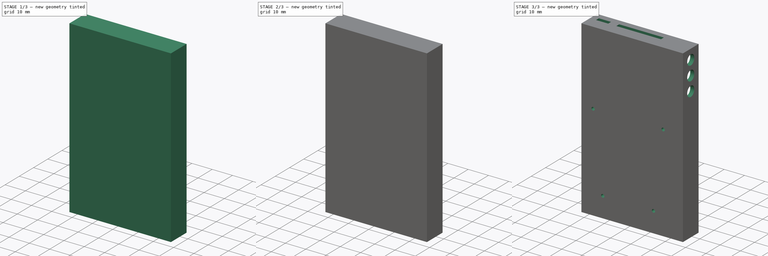
[diagram: build sequence overview — one tinted view per stage of 3, left to right]
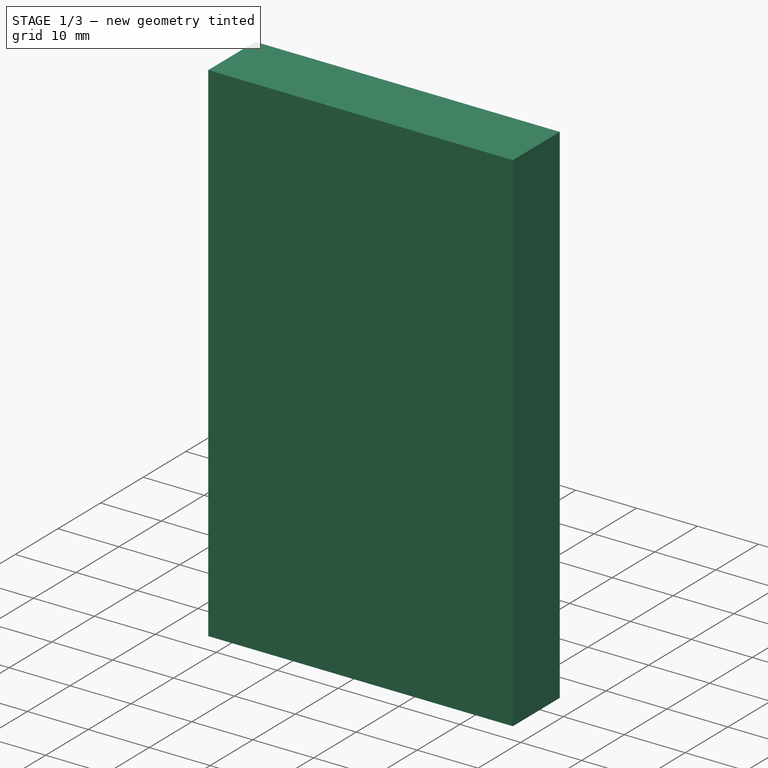
[diagram: stage 1 of 3 — iso view after this stage's code; geometry added in this stage tinted green]
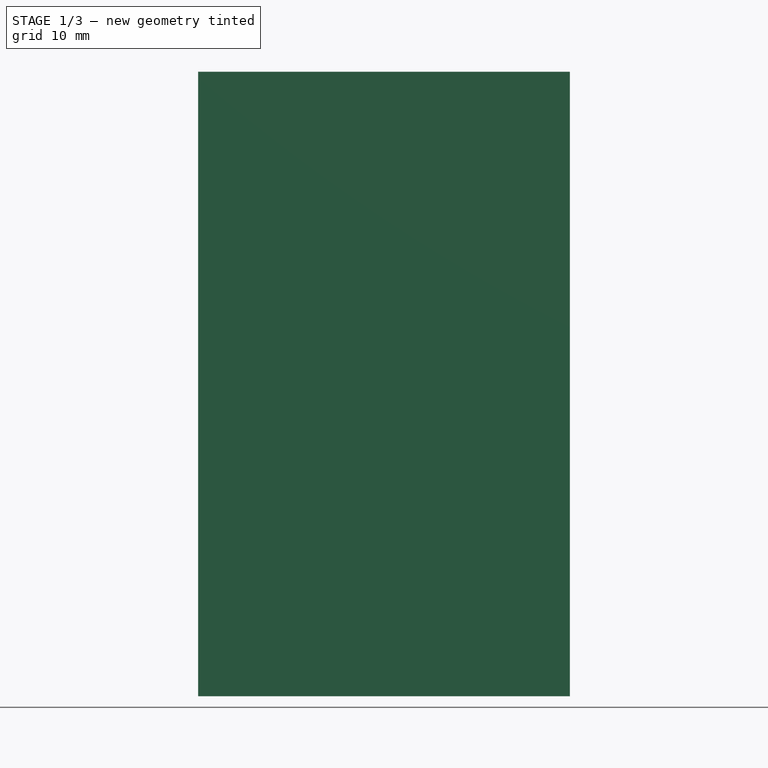
[diagram: stage 1 of 3 — front view after this stage's code; geometry added in this stage tinted green]
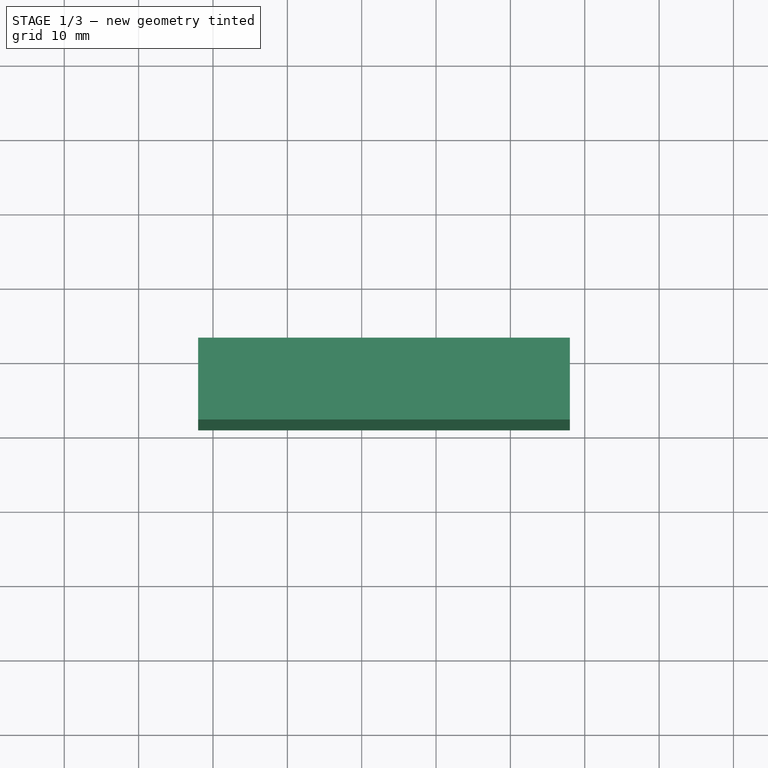
[diagram: stage 1 of 3 — top view after this stage's code; geometry added in this stage tinted green]
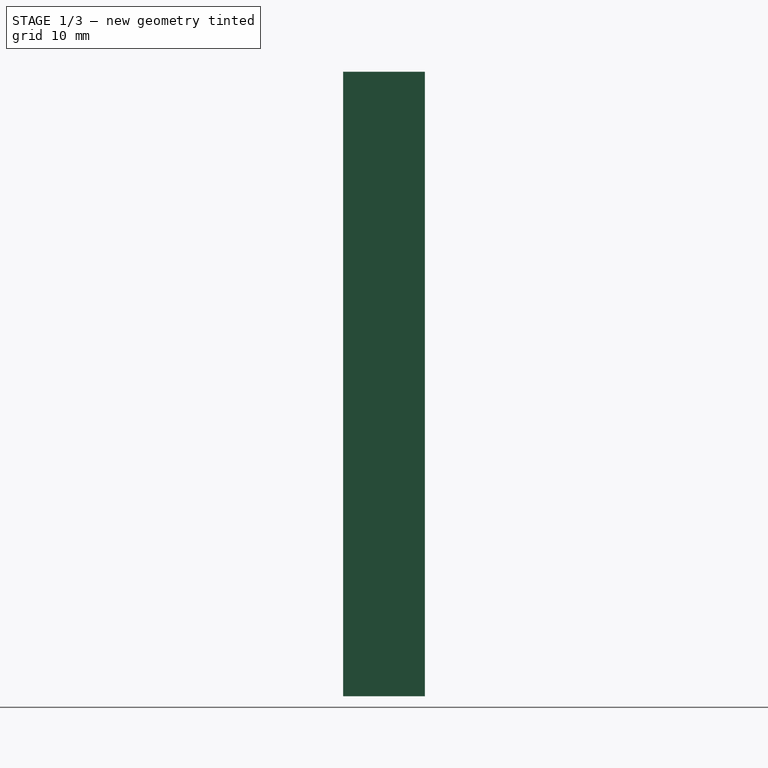
[diagram: stage 1 of 3 — right view after this stage's code; geometry added in this stage tinted green]
FCSTD DOCUMENT  (FreeCAD 1.0R39319 (Git))
Label: back-01
License: All rights reserved
LicenseURL: http://en.wikipedia.org/wiki/All_rights_reserved
objects: Sketcher::SketchObject×10, PartDesign::Pad×5, Measure::MeasureDistance×3, PartDesign::Pocket×2, App::Part×1, PartDesign::Hole×1, PartDesign::Body×1, App::DocumentObjectGroup×1
note: 45 computed .brp shape members not serialized (recipe doc carries the construction recipe); baked Part::Feature solids carry a one-line shape summary decoded from their .brp

FEATURE [Sketcher::SketchObject] Sketch
  ArcFitTolerance = 1e-06
  FullyConstrained = true
  MakeInternals = false
  MapMode = 5
  Placement = pos=(0,1,0) rot=(0,0.707107,0.707107;3.14159rad)
  sketch-geometry (4):
    g0: Circle CenterX=-38.25 CenterY=-16.5 CenterZ=0 NormalX=0 NormalY=0 NormalZ=1 AngleXU=0 Radius=2.5
    g1: Circle CenterX=-3.75 CenterY=-16.5 CenterZ=0 NormalX=0 NormalY=0 NormalZ=1 AngleXU=0 Radius=2.5
    g2: Circle CenterX=-33.5 CenterY=-54 CenterZ=0 NormalX=0 NormalY=0 NormalZ=1 AngleXU=0 Radius=2.5
    g3: Circle CenterX=-8.5 CenterY=-54 CenterZ=0 NormalX=0 NormalY=0 NormalZ=1 AngleXU=0 Radius=2.5
  constraints (12):
    c: PointOnObject(g-6,g0)
    c: PointOnObject(g-5,g0)
    c: PointOnObject(g-7,g0)
    c: PointOnObject(g-9,g1)
    c: PointOnObject(g-10,g1)
    c: PointOnObject(g-11,g1)
    c: PointOnObject(g-13,g2)
    c: PointOnObject(g-14,g2)
    c: PointOnObject(g-15,g2)
    c: PointOnObject(g-16,g3)
    c: PointOnObject(g-17,g3)
    c: PointOnObject(g-18,g3)
FEATURE [Sketcher::SketchObject] Sketch001
  ArcFitTolerance = 1e-06
  FullyConstrained = true
  MakeInternals = false
  MapMode = 5
  Placement = pos=(0,1,0) rot=(0,0.707107,0.707107;3.14159rad)
  sketch-geometry (4):
    g0: Circle [constr] CenterX=-38.25 CenterY=-16.5 CenterZ=0 NormalX=0 NormalY=0 NormalZ=1 AngleXU=0 Radius=2.5
    g1: Circle [constr] CenterX=-3.75 CenterY=-16.5 CenterZ=0 NormalX=0 NormalY=0 NormalZ=1 AngleXU=0 Radius=2.5
    g2: Circle [constr] CenterX=-33.5 CenterY=-54 CenterZ=0 NormalX=0 NormalY=0 NormalZ=1 AngleXU=0 Radius=2.5
    g3: Circle [constr] CenterX=-8.5 CenterY=-54 CenterZ=0 NormalX=0 NormalY=0 NormalZ=1 AngleXU=0 Radius=2.5
  constraints (12):
    c: PointOnObject(g-6,g0)
    c: PointOnObject(g-5,g0)
    c: PointOnObject(g-7,g0)
    c: PointOnObject(g-9,g1)
    c: PointOnObject(g-10,g1)
    c: PointOnObject(g-11,g1)
    c: PointOnObject(g-13,g2)
    c: PointOnObject(g-14,g2)
    c: PointOnObject(g-15,g2)
    c: PointOnObject(g-16,g3)
    c: PointOnObject(g-17,g3)
    c: PointOnObject(g-18,g3)
FEATURE [Sketcher::SketchObject] Sketch002
  ArcFitTolerance = 1e-06
  FullyConstrained = false
  MakeInternals = false
  MapMode = 5
  Placement = pos=(0,1,0) rot=(0,0.707107,0.707107;3.14159rad)
  sketch-geometry (10):
    g0: Circle [constr] CenterX=-38.25 CenterY=-16.5 CenterZ=0 NormalX=0 NormalY=0 NormalZ=1 AngleXU=0 Radius=2.5
    g1: Circle [constr] CenterX=-3.75 CenterY=-16.5 CenterZ=0 NormalX=0 NormalY=0 NormalZ=1 AngleXU=0 Radius=2.5
    g2: Circle [constr] CenterX=-33.5 CenterY=-54 CenterZ=0 NormalX=0 NormalY=0 NormalZ=1 AngleXU=0 Radius=2.5
    g3: Circle [constr] CenterX=-8.5 CenterY=-54 CenterZ=0 NormalX=0 NormalY=0 NormalZ=1 AngleXU=0 Radius=2.5
    g4: LineSegment StartX=-44 StartY=-64 StartZ=0 EndX=2 EndY=-64 EndZ=0
    g5: LineSegment StartX=2 StartY=-64 StartZ=0 EndX=2 EndY=20 EndZ=0
    g6: LineSegment StartX=2 StartY=20 StartZ=0 EndX=-44 EndY=20 EndZ=0
    g7: LineSegment StartX=-44 StartY=20 StartZ=0 EndX=-48 EndY=20 EndZ=0
    g8: LineSegment StartX=-48 StartY=20 StartZ=0 EndX=-48 EndY=-64 EndZ=0
    g9: LineSegment StartX=-48 StartY=-64 StartZ=0 EndX=-44 EndY=-64 EndZ=0
  constraints (29):
    c: PointOnObject(g-6,g0)
    c: PointOnObject(g-5,g0)
    c: PointOnObject(g-7,g0)
    c: PointOnObject(g-9,g1)
    c: PointOnObject(g-10,g1)
    c: PointOnObject(g-11,g1)
    c: PointOnObject(g-13,g2)
    c: PointOnObject(g-14,g2)
    c: PointOnObject(g-15,g2)
    c: PointOnObject(g-16,g3)
    c: PointOnObject(g-17,g3)
    c: PointOnObject(g-18,g3)
    c: Coincident(g4,g5)
    c: Coincident(g5,g6)
    c: Vertical(g5)
    c: Horizontal(g4)
    c: Horizontal(g6)
    c: PointOnObject(g6,g-23)
    c: PointOnObject(g-24,g5)
    c: PointOnObject(g-26,g6)
    c: PointOnObject(g-25,g4)
    c: Coincident(g6,g7)
    c: Horizontal(g7)
    c: Coincident(g7,g8)
    c: Vertical(g8)
    c: Coincident(g8,g9)
    c: Coincident(g9,g4)
    c: Horizontal(g9)
    c: DistanceX(g7,g6) = 4
FEATURE [App::Part] Part
  Origin = -> Origin
FEATURE [PartDesign::Pad] Pad  label="bottom-box"
  Direction = (0,1,-2e-16)
  Length = 2
  Length2 = 10
  Placement = pos=(0,1,0) rot=(0,0.707107,0.707107;3.14159rad)
  Profile = -> Sketch002
  ReferenceAxis = -> Sketch002 [N_Axis]
  Suppressed = false
  Type = 0
FEATURE [Sketcher::SketchObject] Sketch003
  ArcFitTolerance = 1e-06
  FullyConstrained = false
  MakeInternals = false
  MapMode = 5
  Placement = pos=(0,1,0) rot=(0,0.707107,0.707107;3.14159rad)
  sketch-geometry (16):
    g0: Circle [constr] CenterX=-38.25 CenterY=-16.5 CenterZ=0 NormalX=0 NormalY=0 NormalZ=1 AngleXU=0 Radius=2.5
    g1: Circle [constr] CenterX=-3.75 CenterY=-16.5 CenterZ=0 NormalX=0 NormalY=0 NormalZ=1 AngleXU=0 Radius=2.5
    g2: Circle [constr] CenterX=-33.5 CenterY=-54 CenterZ=0 NormalX=0 NormalY=0 NormalZ=1 AngleXU=0 Radius=2.5
    g3: Circle [constr] CenterX=-8.5 CenterY=-54 CenterZ=0 NormalX=0 NormalY=0 NormalZ=1 AngleXU=0 Radius=2.5
    g4: LineSegment StartX=-44 StartY=-64 StartZ=0 EndX=2 EndY=-64 EndZ=0
    g5: LineSegment StartX=2 StartY=-64 StartZ=0 EndX=2 EndY=20 EndZ=0
    g6: LineSegment StartX=2 StartY=20 StartZ=0 EndX=-44 EndY=20 EndZ=0
    g7: LineSegment StartX=-42 StartY=-62 StartZ=0 EndX=0 EndY=-62 EndZ=0
    g8: LineSegment StartX=0 StartY=-62 StartZ=0 EndX=0 EndY=18 EndZ=0
    g9: LineSegment StartX=0 StartY=18 StartZ=0 EndX=-42 EndY=18 EndZ=0
    g10: LineSegment StartX=-44 StartY=20 StartZ=0 EndX=-48 EndY=20 EndZ=0
    g11: LineSegment StartX=-48 StartY=20 StartZ=0 EndX=-48 EndY=-64 EndZ=0
    g12: LineSegment StartX=-48 StartY=-64 StartZ=0 EndX=-44 EndY=-64 EndZ=0
    g13: LineSegment StartX=-42 StartY=-62 StartZ=0 EndX=-46 EndY=-62 EndZ=0
    g14: LineSegment StartX=-46 StartY=-62 StartZ=0 EndX=-46 EndY=18 EndZ=0
    g15: LineSegment StartX=-46 StartY=18 StartZ=0 EndX=-42 EndY=18 EndZ=0
  constraints (44):
    c: PointOnObject(g-6,g0)
    c: PointOnObject(g-5,g0)
    c: PointOnObject(g-7,g0)
    c: PointOnObject(g-9,g1)
    c: PointOnObject(g-10,g1)
    c: PointOnObject(g-11,g1)
    c: PointOnObject(g-13,g2)
    c: PointOnObject(g-14,g2)
    c: PointOnObject(g-15,g2)
    c: PointOnObject(g-16,g3)
    c: PointOnObject(g-17,g3)
    c: PointOnObject(g-18,g3)
    c: Coincident(g4,g5)
    c: Coincident(g5,g6)
    c: Vertical(g5)
    c: Horizontal(g4)
    c: Horizontal(g6)
    c: PointOnObject(g6,g-23)
    c: PointOnObject(g-24,g5)
    c: PointOnObject(g-26,g6)
    c: PointOnObject(g-25,g4)
    c: Coincident(g7,g8)
    c: Coincident(g8,g9)
    c: Vertical(g8)
    c: Horizontal(g7)
    c: Horizontal(g9)
    c: Coincident(g7,g-4)
    c: Coincident(g6,g10)
    c: Horizontal(g10)
    c: Coincident(g10,g11)
    c: Vertical(g11)
    c: Coincident(g11,g12)
    c: Coincident(g12,g4)
    c: Horizontal(g12)
    c: Coincident(g7,g13)
    c: Horizontal(g13)
    c: Coincident(g13,g14)
    c: Vertical(g14)
    c: Coincident(g14,g15)
    c: Coincident(g15,g9)
    c: Coincident(g9,g-19)
    c: Horizontal(g15)
    c: DistanceX(g14,g9) = 4
    c: DistanceX(g10,g6) = 4
FEATURE [PartDesign::Pad] Pad001  label="inside-box"
  BaseFeature = -> Pad
  Direction = (1e-16,1,-2e-16)
  Length = 9
  Length2 = 10
  Placement = pos=(0,1,0) rot=(0,0.707107,0.707107;3.14159rad)
  Profile = -> Sketch003
  ReferenceAxis = -> Sketch003 [N_Axis]
  Suppressed = false
  Type = 0
FEATURE [Sketcher::SketchObject] Sketch004
  ArcFitTolerance = 1e-06
  FullyConstrained = false
  MakeInternals = false
  MapMode = 5
  Placement = pos=(0,1,0) rot=(0,0.707107,0.707107;3.14159rad)
  sketch-geometry (20):
    g0: Circle [constr] CenterX=-38.25 CenterY=-16.5 CenterZ=0 NormalX=0 NormalY=0 NormalZ=1 AngleXU=0 Radius=2.5
    g1: Circle [constr] CenterX=-3.75 CenterY=-16.5 CenterZ=0 NormalX=0 NormalY=0 NormalZ=1 AngleXU=0 Radius=2.5
    g2: Circle [constr] CenterX=-33.5 CenterY=-54 CenterZ=0 NormalX=0 NormalY=0 NormalZ=1 AngleXU=0 Radius=2.5
    g3: Circle [constr] CenterX=-8.5 CenterY=-54 CenterZ=0 NormalX=0 NormalY=0 NormalZ=1 AngleXU=0 Radius=2.5
    g4: LineSegment StartX=-44 StartY=-64 StartZ=0 EndX=2 EndY=-64 EndZ=0
    g5: LineSegment StartX=2 StartY=-64 StartZ=0 EndX=2 EndY=20 EndZ=0
    g6: LineSegment StartX=2 StartY=20 StartZ=0 EndX=-44 EndY=20 EndZ=0
    g7: LineSegment [constr] StartX=-42 StartY=18 StartZ=0 EndX=-42 EndY=-62 EndZ=0
    g8: LineSegment [constr] StartX=-42 StartY=-62 StartZ=0 EndX=0 EndY=-62 EndZ=0
    g9: LineSegment [constr] StartX=0 StartY=-62 StartZ=0 EndX=0 EndY=18 EndZ=0
    g10: LineSegment [constr] StartX=0 StartY=18 StartZ=0 EndX=-42 EndY=18 EndZ=0
    g11: LineSegment StartX=-43 StartY=-63 StartZ=0 EndX=1 EndY=-63 EndZ=0
    g12: LineSegment StartX=1 StartY=-63 StartZ=0 EndX=1 EndY=19 EndZ=0
    g13: LineSegment StartX=1 StartY=19 StartZ=0 EndX=-43 EndY=19 EndZ=0
    g14: LineSegment StartX=-44 StartY=20 StartZ=0 EndX=-48 EndY=20 EndZ=0
    g15: LineSegment StartX=-48 StartY=20 StartZ=0 EndX=-48 EndY=-64 EndZ=0
    g16: LineSegment StartX=-48 StartY=-64 StartZ=0 EndX=-44 EndY=-64 EndZ=0
    g17: LineSegment StartX=-43 StartY=19 StartZ=0 EndX=-47 EndY=19 EndZ=0
    g18: LineSegment StartX=-47 StartY=19 StartZ=0 EndX=-47 EndY=-63 EndZ=0
    g19: LineSegment StartX=-47 StartY=-63 StartZ=0 EndX=-43 EndY=-63 EndZ=0
  constraints (54):
    c: PointOnObject(g-6,g0)
    c: PointOnObject(g-5,g0)
    c: PointOnObject(g-7,g0)
    c: PointOnObject(g-9,g1)
    c: PointOnObject(g-10,g1)
    c: PointOnObject(g-11,g1)
    c: PointOnObject(g-13,g2)
    c: PointOnObject(g-14,g2)
    c: PointOnObject(g-15,g2)
    c: PointOnObject(g-16,g3)
    c: PointOnObject(g-17,g3)
    c: PointOnObject(g-18,g3)
    c: Coincident(g4,g5)
    c: Coincident(g5,g6)
    c: Vertical(g5)
    c: Horizontal(g4)
    c: Horizontal(g6)
    c: PointOnObject(g6,g-23)
    c: PointOnObject(g-24,g5)
    c: PointOnObject(g-26,g6)
    c: PointOnObject(g-25,g4)
    c: Coincident(g7,g8)
    c: Coincident(g8,g9)
    c: Coincident(g9,g10)
    c: Coincident(g10,g7)
    c: Vertical(g7)
    c: Vertical(g9)
    c: Horizontal(g8)
    c: Horizontal(g10)
    c: Coincident(g7,g-19)
    c: Coincident(g8,g-4)
    c: Coincident(g11,g12)
    c: Coincident(g12,g13)
    c: Vertical(g12)
    c: Horizontal(g11)
    c: Horizontal(g13)
    c: Coincident(g11,g-22)
    c: Coincident(g6,g14)
    c: Horizontal(g14)
    c: Coincident(g14,g15)
    c: Vertical(g15)
    c: Coincident(g15,g16)
    c: Coincident(g16,g4)
    c: Horizontal(g16)
    c: Coincident(g13,g17)
    c: Horizontal(g17)
    c: Coincident(g17,g18)
    c: Vertical(g18)
    c: Coincident(g18,g19)
    c: Coincident(g19,g11)
    c: Horizontal(g19)
    c: DistanceX(g14,g6) = 4
    c: DistanceX(g17,g13) = 4
    c: Coincident(g13,g-21)
FEATURE [PartDesign::Pad] Pad002  label="outside-box"
  BaseFeature = -> Pad001
  Direction = (1e-16,1,-2e-16)
  Length = 11
  Length2 = 10
  Placement = pos=(0,1,0) rot=(0,0.707107,0.707107;3.14159rad)
  Profile = -> Sketch004
  ReferenceAxis = -> Sketch004 [N_Axis]
  Suppressed = false
  Type = 0
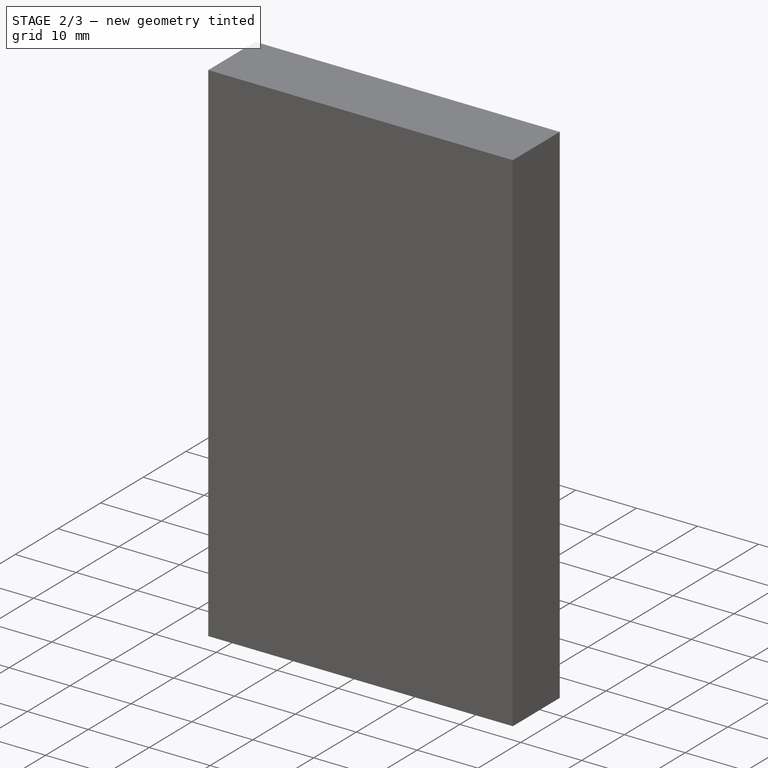
[diagram: stage 2 of 3 — iso view after this stage's code; geometry added in this stage tinted green]
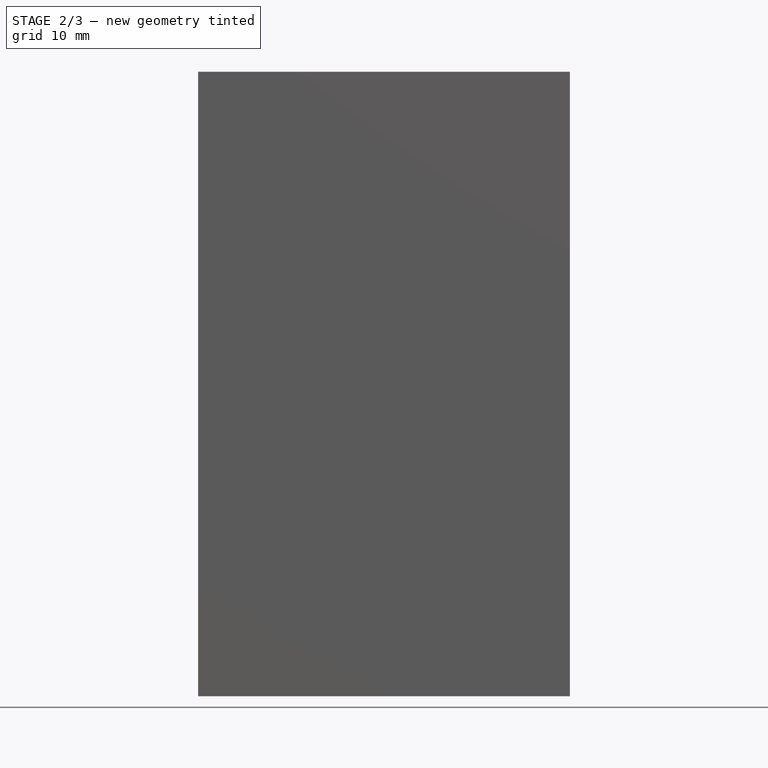
[diagram: stage 2 of 3 — front view after this stage's code; geometry added in this stage tinted green]
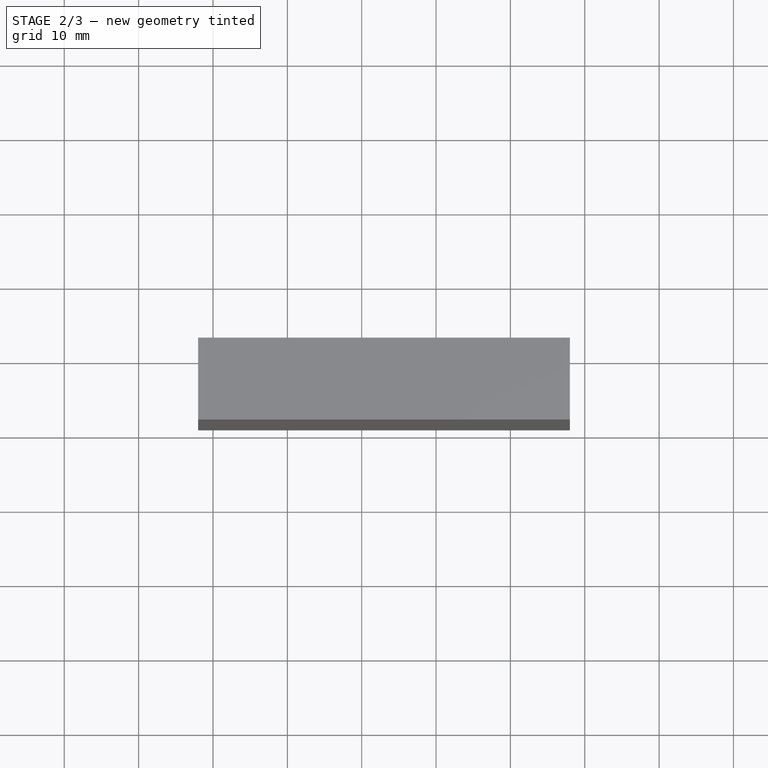
[diagram: stage 2 of 3 — top view after this stage's code; geometry added in this stage tinted green]
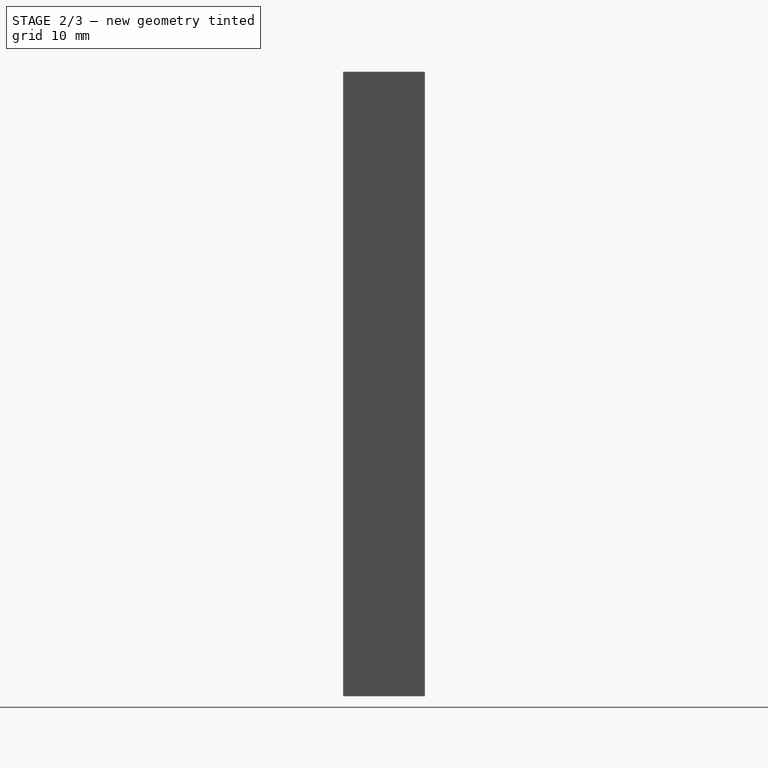
[diagram: stage 2 of 3 — right view after this stage's code; geometry added in this stage tinted green]
FEATURE [Sketcher::SketchObject] Sketch005  label="fat-peg001"
  ArcFitTolerance = 1e-06
  FullyConstrained = true
  MakeInternals = false
  MapMode = 5
  Placement = pos=(0,1,0) rot=(0,0.707107,0.707107;3.14159rad)
  sketch-geometry (4):
    g0: Circle CenterX=-38.25 CenterY=-16.5 CenterZ=0 NormalX=0 NormalY=0 NormalZ=1 AngleXU=0 Radius=2.5
    g1: Circle CenterX=-3.75 CenterY=-16.5 CenterZ=0 NormalX=0 NormalY=0 NormalZ=1 AngleXU=0 Radius=2.5
    g2: Circle CenterX=-33.5 CenterY=-54 CenterZ=0 NormalX=0 NormalY=0 NormalZ=1 AngleXU=0 Radius=2.5
    g3: Circle CenterX=-8.5 CenterY=-54 CenterZ=0 NormalX=0 NormalY=0 NormalZ=1 AngleXU=0 Radius=2.5
  constraints (12):
    c: PointOnObject(g-6,g0)
    c: PointOnObject(g-5,g0)
    c: PointOnObject(g-7,g0)
    c: PointOnObject(g-9,g1)
    c: PointOnObject(g-10,g1)
    c: PointOnObject(g-11,g1)
    c: PointOnObject(g-13,g2)
    c: PointOnObject(g-14,g2)
    c: PointOnObject(g-15,g2)
    c: PointOnObject(g-16,g3)
    c: PointOnObject(g-17,g3)
    c: PointOnObject(g-18,g3)
FEATURE [PartDesign::Pad] Pad003  label="fat-peg"
  BaseFeature = -> Pad002
  Direction = (1e-16,1,-2e-16)
  Length = 4.5
  Length2 = 10
  Placement = pos=(0,1,0) rot=(0,0.707107,0.707107;3.14159rad)
  Profile = -> Sketch005
  ReferenceAxis = -> Sketch005 [N_Axis]
  Suppressed = false
  Type = 0
FEATURE [Sketcher::SketchObject] Sketch006  label="narrow-peg001"
  ArcFitTolerance = 1e-06
  FullyConstrained = true
  MakeInternals = false
  MapMode = 5
  Placement = pos=(0,1,0) rot=(0,0.707107,0.707107;3.14159rad)
  sketch-geometry (8):
    g0: Circle [constr] CenterX=-38.25 CenterY=-16.5 CenterZ=0 NormalX=0 NormalY=0 NormalZ=1 AngleXU=0 Radius=2.5
    g1: Circle [constr] CenterX=-3.75 CenterY=-16.5 CenterZ=0 NormalX=0 NormalY=0 NormalZ=1 AngleXU=0 Radius=2.5
    g2: Circle [constr] CenterX=-33.5 CenterY=-54 CenterZ=0 NormalX=0 NormalY=0 NormalZ=1 AngleXU=0 Radius=2.5
    g3: Circle [constr] CenterX=-8.5 CenterY=-54 CenterZ=0 NormalX=0 NormalY=0 NormalZ=1 AngleXU=0 Radius=2.5
    g4: Circle CenterX=-3.75 CenterY=-16.5 CenterZ=0 NormalX=0 NormalY=0 NormalZ=1 AngleXU=0 Radius=1.5
    g5: Circle CenterX=-38.25 CenterY=-16.5 CenterZ=0 NormalX=0 NormalY=0 NormalZ=1 AngleXU=0 Radius=1.5
    g6: Circle CenterX=-8.5 CenterY=-54 CenterZ=0 NormalX=0 NormalY=0 NormalZ=1 AngleXU=0 Radius=1.5
    g7: Circle CenterX=-33.5 CenterY=-54 CenterZ=0 NormalX=0 NormalY=0 NormalZ=1 AngleXU=0 Radius=1.5
  constraints (20):
    c: PointOnObject(g-6,g0)
    c: PointOnObject(g-5,g0)
    c: PointOnObject(g-7,g0)
    c: PointOnObject(g-9,g1)
    c: PointOnObject(g-10,g1)
    c: PointOnObject(g-11,g1)
    c: PointOnObject(g-13,g2)
    c: PointOnObject(g-14,g2)
    c: PointOnObject(g-15,g2)
    c: PointOnObject(g-16,g3)
    c: PointOnObject(g-17,g3)
    c: PointOnObject(g-18,g3)
    c: Diameter(g4) = 3
    c: Coincident(g4,g1)
    c: Diameter(g5) = 3
    c: Coincident(g5,g0)
    c: Diameter(g6) = 3
    c: Coincident(g6,g3)
    c: Diameter(g7) = 3
    c: Coincident(g7,g2)
FEATURE [PartDesign::Pad] Pad004  label="narrow-peg"
  BaseFeature = -> Pad003
  Direction = (1e-16,1,-2e-16)
  Length = 7
  Length2 = 10
  Placement = pos=(0,1,0) rot=(0,0.707107,0.707107;3.14159rad)
  Profile = -> Sketch006
  ReferenceAxis = -> Sketch006 [N_Axis]
  Suppressed = false
  Type = 0
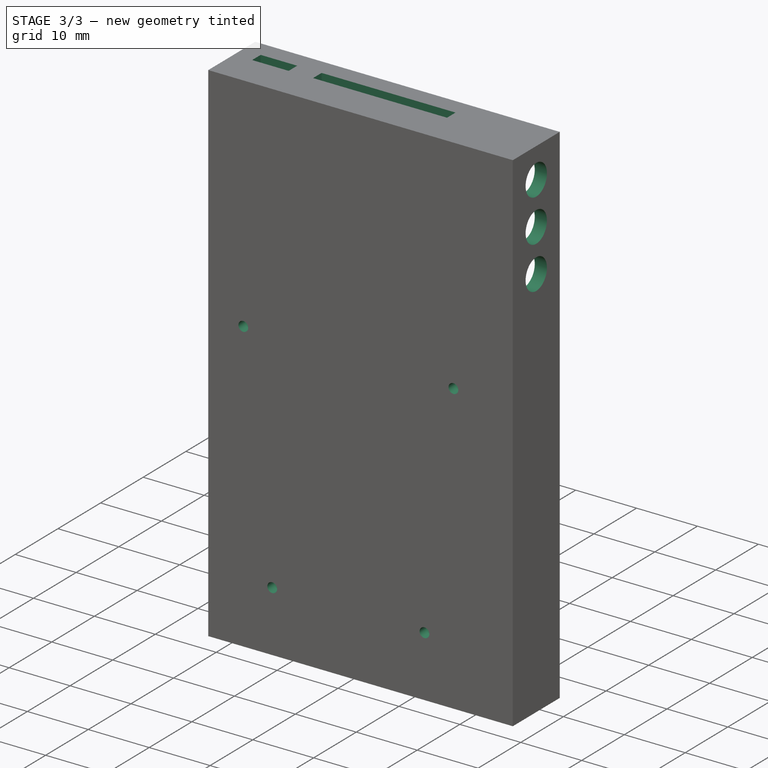
[diagram: stage 3 of 3 — iso view after this stage's code; geometry added in this stage tinted green]
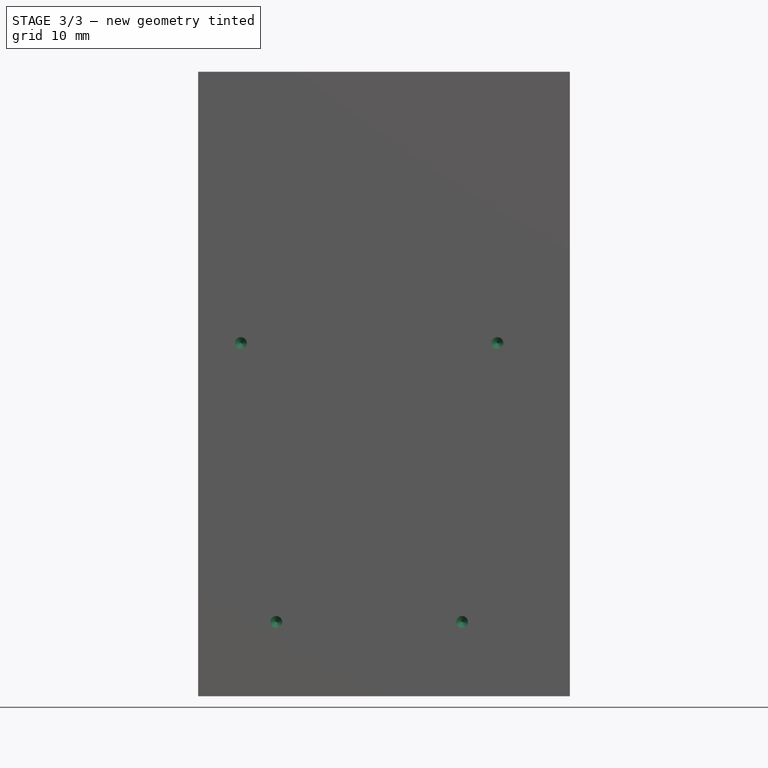
[diagram: stage 3 of 3 — front view after this stage's code; geometry added in this stage tinted green]
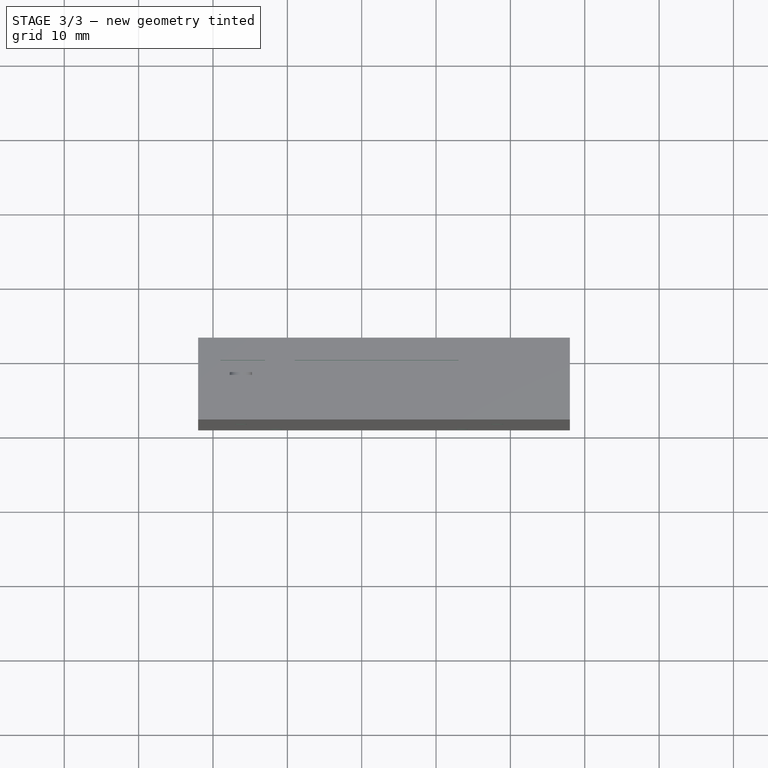
[diagram: stage 3 of 3 — top view after this stage's code; geometry added in this stage tinted green]
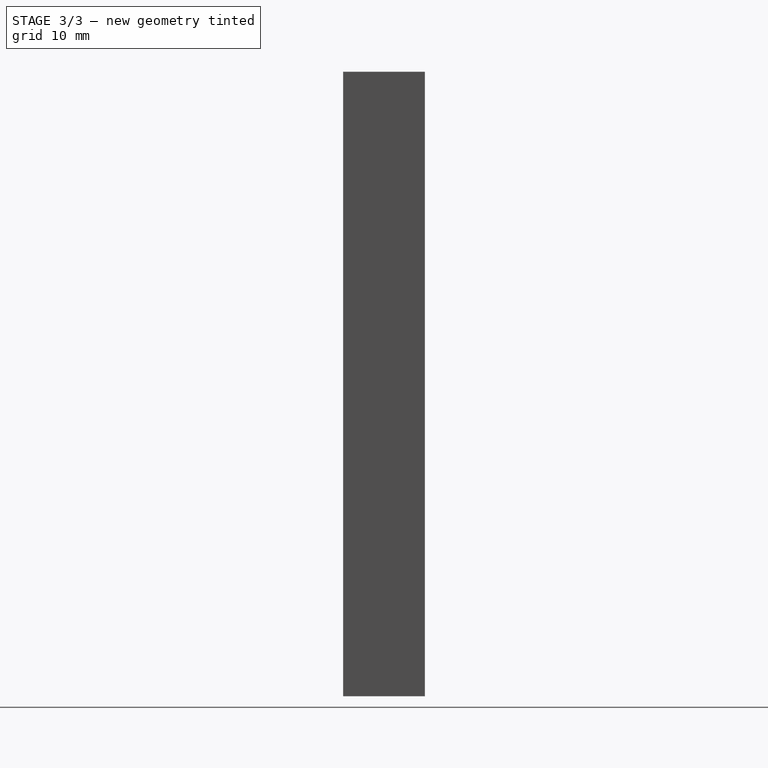
[diagram: stage 3 of 3 — right view after this stage's code; geometry added in this stage tinted green]
FEATURE [Sketcher::SketchObject] Sketch007
  ArcFitTolerance = 1e-06
  AttachmentSupport = -> [Pad004]
  ExternalGeometry = -> [Pad004]
  FullyConstrained = false
  MakeInternals = false
  MapMode = 5
  Placement = pos=(0,1,20) rot=(0,0,1;0rad)
  sketch-geometry (10):
    g0: LineSegment StartX=11 StartY=8 StartZ=0 EndX=11 EndY=6 EndZ=0
    g1: LineSegment StartX=11 StartY=6 StartZ=0 EndX=33 EndY=6 EndZ=0
    g2: LineSegment StartX=33 StartY=6 StartZ=0 EndX=33 EndY=8 EndZ=0
    g3: LineSegment StartX=33 StartY=8 StartZ=0 EndX=11 EndY=8 EndZ=0
    g4: GeomPoint X=21 Y=2 Z=0
    g5: LineSegment [constr] StartX=21 StartY=17.9146 StartZ=0 EndX=21 EndY=-12.0854 EndZ=0
    g6: LineSegment StartX=1 StartY=8 StartZ=0 EndX=1 EndY=6 EndZ=0
    g7: LineSegment StartX=1 StartY=6 StartZ=0 EndX=7 EndY=6 EndZ=0
    g8: LineSegment StartX=7 StartY=6 StartZ=0 EndX=7 EndY=8 EndZ=0
    g9: LineSegment StartX=7 StartY=8 StartZ=0 EndX=1 EndY=8 EndZ=0
  constraints (28):
    c: Coincident(g0,g1)
    c: Coincident(g1,g2)
    c: Coincident(g2,g3)
    c: Coincident(g3,g0)
    c: Vertical(g0)
    c: Vertical(g2)
    c: Horizontal(g1)
    c: Horizontal(g3)
    c: Distance(g0,g2) = 22
    c: Distance(g1,g3) = 2
    c: Symmetric(g-3,g-3,g4)
    c: PointOnObject(g4,g5)
    c: DistanceY(g5,g5) = 30
    c: Symmetric(g0,g1,g5)
    c: DistanceY(g-4,g0) = 6
    c: Coincident(g6,g7)
    c: Coincident(g7,g8)
    c: Coincident(g8,g9)
    c: Coincident(g9,g6)
    c: Vertical(g6)
    c: Vertical(g8)
    c: Horizontal(g7)
    c: Horizontal(g9)
    c: DistanceY(g8,g8) = 2
    c: DistanceY(g-4,g6) = 6
    c: DistanceX(g7,g7) = 6
    c: DistanceX(g7,g0) = 4
    c: DistanceX(g-4,g6) = 3
FEATURE [PartDesign::Pocket] Pocket  label="cable-hole"
  BaseFeature = -> Pad004
  Direction = (0,0,-1)
  Length = 5
  Length2 = 5
  Placement = pos=(0,1,0) rot=(0,0.707107,0.707107;3.14159rad)
  Profile = -> Sketch007
  ReferenceAxis = -> Sketch007 [N_Axis]
  Suppressed = false
  Type = 0
FEATURE [Sketcher::SketchObject] Sketch008
  ArcFitTolerance = 1e-06
  AttachmentSupport = -> [Pocket]
  FullyConstrained = true
  MakeInternals = false
  MapMode = 5
  Placement = pos=(48,1,0) rot=(0,1,0;1.5708rad)
  sketch-geometry (5):
    g0: LineSegment [constr] StartX=-20 StartY=5.5 StartZ=0 EndX=64 EndY=5.5 EndZ=0
    g1: Circle CenterX=-15 CenterY=5.5 CenterZ=0 NormalX=0 NormalY=0 NormalZ=1 AngleXU=0 Radius=2.5
    g2: Circle CenterX=-8 CenterY=5.5 CenterZ=0 NormalX=0 NormalY=0 NormalZ=1 AngleXU=0 Radius=2.5
    g3: Circle CenterX=-1 CenterY=5.5 CenterZ=0 NormalX=0 NormalY=0 NormalZ=1 AngleXU=0 Radius=2.5
    g4: Circle [constr] CenterX=6 CenterY=5.5 CenterZ=0 NormalX=0 NormalY=0 NormalZ=1 AngleXU=0 Radius=2.5
  constraints (14):
    c: Symmetric(g-3,g-4,g0)
    c: Symmetric(g-3,g-4,g0)
    c: Diameter(g1) = 5
    c: PointOnObject(g1,g0)
    c: Diameter(g2) = 5
    c: PointOnObject(g2,g0)
    c: Diameter(g3) = 5
    c: DistanceX(g0,g1) = 5
    c: DistanceX(g1,g2) = 7
    c: DistanceX(g2,g3) = 7
    c: PointOnObject(g3,g0)
    c: Diameter(g4) = 5
    c: PointOnObject(g4,g0)
    c: DistanceX(g3,g4) = 7
FEATURE [PartDesign::Pocket] Pocket001  label="LED-holes"
  BaseFeature = -> Pocket
  Direction = (-1,0,-2e-16)
  Length = 10
  Length2 = 5
  Midplane = true
  Placement = pos=(0,1,0) rot=(0,0.707107,0.707107;3.14159rad)
  Profile = -> Sketch008
  ReferenceAxis = -> Sketch008 [N_Axis]
  Suppressed = false
  Type = 0
FEATURE [Sketcher::SketchObject] Sketch009
  ArcFitTolerance = 1e-06
  AttachmentSupport = -> [Pocket001]
  ExternalGeometry = -> [Pocket001]
  FullyConstrained = true
  MakeInternals = false
  MapMode = 5
  Placement = pos=(0,1,0) rot=(0,0.707107,-0.707107;3.14159rad)
  sketch-geometry (4):
    g0: Circle CenterX=-33.5 CenterY=54 CenterZ=0 NormalX=0 NormalY=0 NormalZ=1 AngleXU=0 Radius=1
    g1: Circle CenterX=-8.5 CenterY=54 CenterZ=0 NormalX=0 NormalY=0 NormalZ=1 AngleXU=0 Radius=1
    g2: Circle CenterX=-38.25 CenterY=16.5 CenterZ=0 NormalX=0 NormalY=0 NormalZ=1 AngleXU=0 Radius=1
    g3: Circle CenterX=-3.75 CenterY=16.5 CenterZ=0 NormalX=0 NormalY=0 NormalZ=1 AngleXU=0 Radius=1
  constraints (8):
    c: Diameter(g0) = 2
    c: Coincident(g0,g-4)
    c: Diameter(g1) = 2
    c: Coincident(g1,g-3)
    c: Diameter(g2) = 2
    c: Coincident(g2,g-5)
    c: Diameter(g3) = 2
    c: Coincident(g3,g-6)
FEATURE [PartDesign::Hole] Hole
  BaseFeature = -> Pocket001
  CustomThreadClearance = 0
  Depth = 1.5
  DepthType = 0
  Diameter = 1.6
  DrillForDepth = false
  DrillPoint = 1
  DrillPointAngle = 118
  HoleCutCountersinkAngle = 90
  HoleCutCustomValues = false
  HoleCutDepth = 0
  HoleCutDiameter = 6.1
  HoleCutType = 0
  ModelThread = false
  Placement = pos=(0,1,0) rot=(0,0.707107,0.707107;3.14159rad)
  Profile = -> Sketch009
  Suppressed = false
  Tapered = false
  TaperedAngle = 90
  ThreadClass = 4
  ThreadDepth = 1.5
  ThreadDepthType = 0
  ThreadDirection = 0
  ThreadFit = 0
  ThreadSize = 6
  ThreadType = 1
  Threaded = true
  UseCustomThreadClearance = false
FEATURE [PartDesign::Body] Body
  AllowCompound = false
  Group = -> [Sketch002,Pad,Sketch003,Pad001,Sketch004,Pad002,Sketch005,Pad003,Sketch006,Pad004,Sketch007,Pocket,Sketch008,Pocket001,Sketch009,Hole]
  Origin = -> Origin001
  Tip = -> Hole
FEATURE [Measure::MeasureDistance] Distance  label="Distance: 5.00 mm"
  Distance = 5
  DistanceX = 0
  DistanceY = 5
  DistanceZ = 0
  Element1 = -> Body [Pocket001.?Face47]
  Element2 = -> Body [Pocket001.Face63]
  Position1 = (35.75,3,-16.5)
  Position2 = (35.75,8,-16.5)
FEATURE [Measure::MeasureDistance] Distance001  label="Distance001: 9.19 mm"
  Distance = 9.19239
  DistanceX = 0
  DistanceY = 6.5
  DistanceZ = 6.5
  Element1 = -> Body [Pocket001.Face60]
  Element2 = -> Body [Pocket001.Face19]
  Position1 = (8.5,5.5,-56.5)
  Position2 = (8.5,12,-63)
FEATURE [Measure::MeasureDistance] Distance002  label="Distance002: 2.00 mm"
  Distance = 2
  DistanceX = 0
  DistanceY = 2
  DistanceZ = 0
  Element1 = -> Body [Hole.Face50]
  Element2 = -> Body [Hole.Face19]
  Position1 = (-1,10,-63)
  Position2 = (-1,12,-63)
FEATURE [App::DocumentObjectGroup] Measurements
  Group = -> [Distance,Distance001,Distance002]
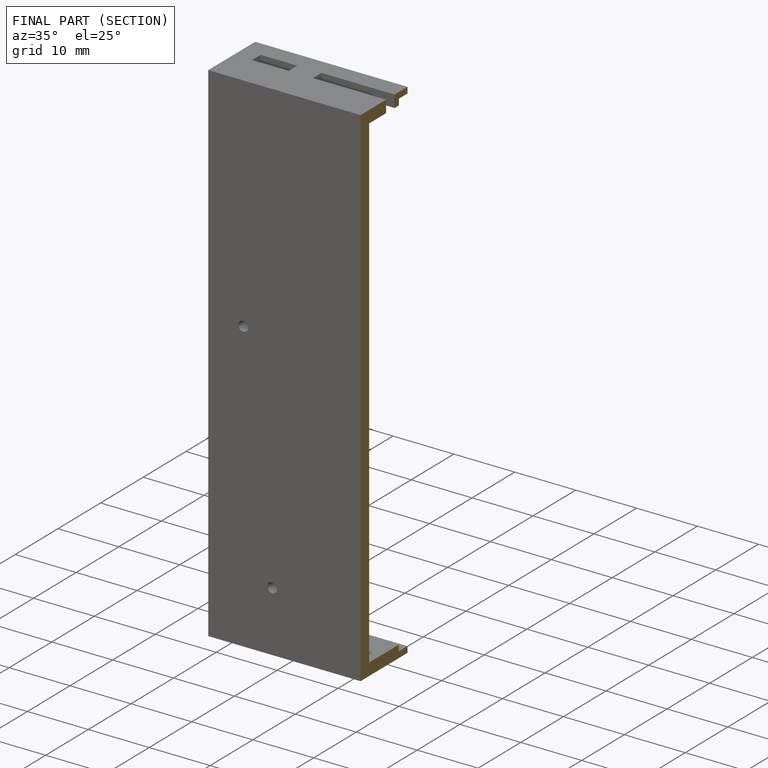
[diagram: finished part — half-section view (interior)]
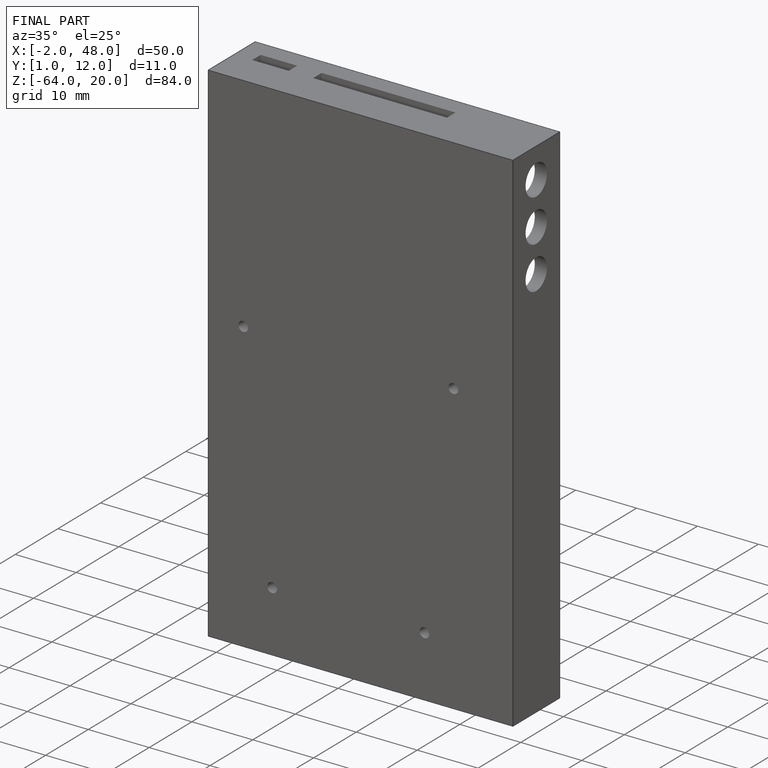
[diagram: finished part — iso view with bounding-box wireframe]
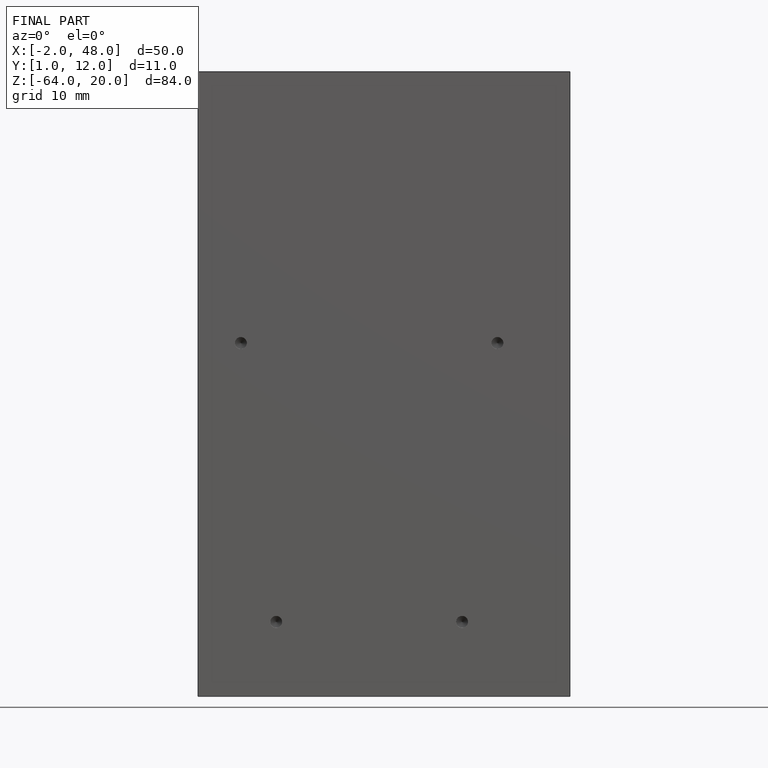
[diagram: finished part — front view with bounding-box wireframe]
